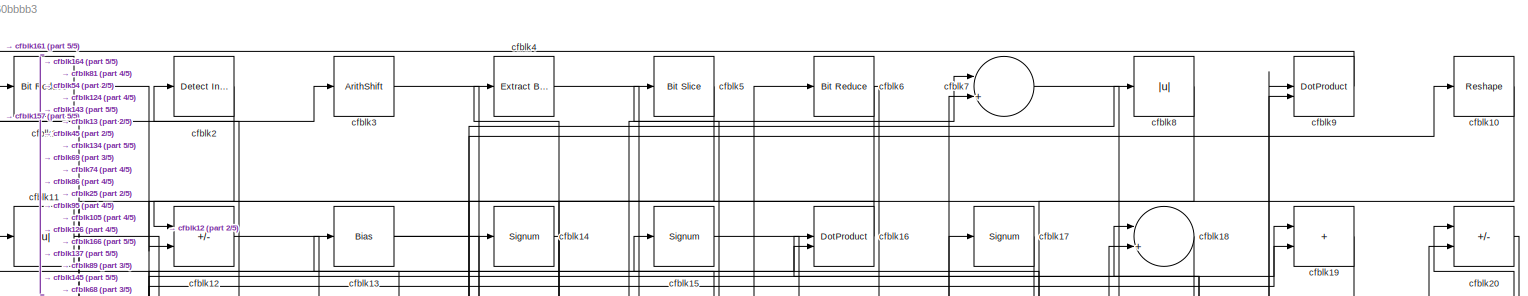
[diagram: root canvas - part 1/5, full width, top band]
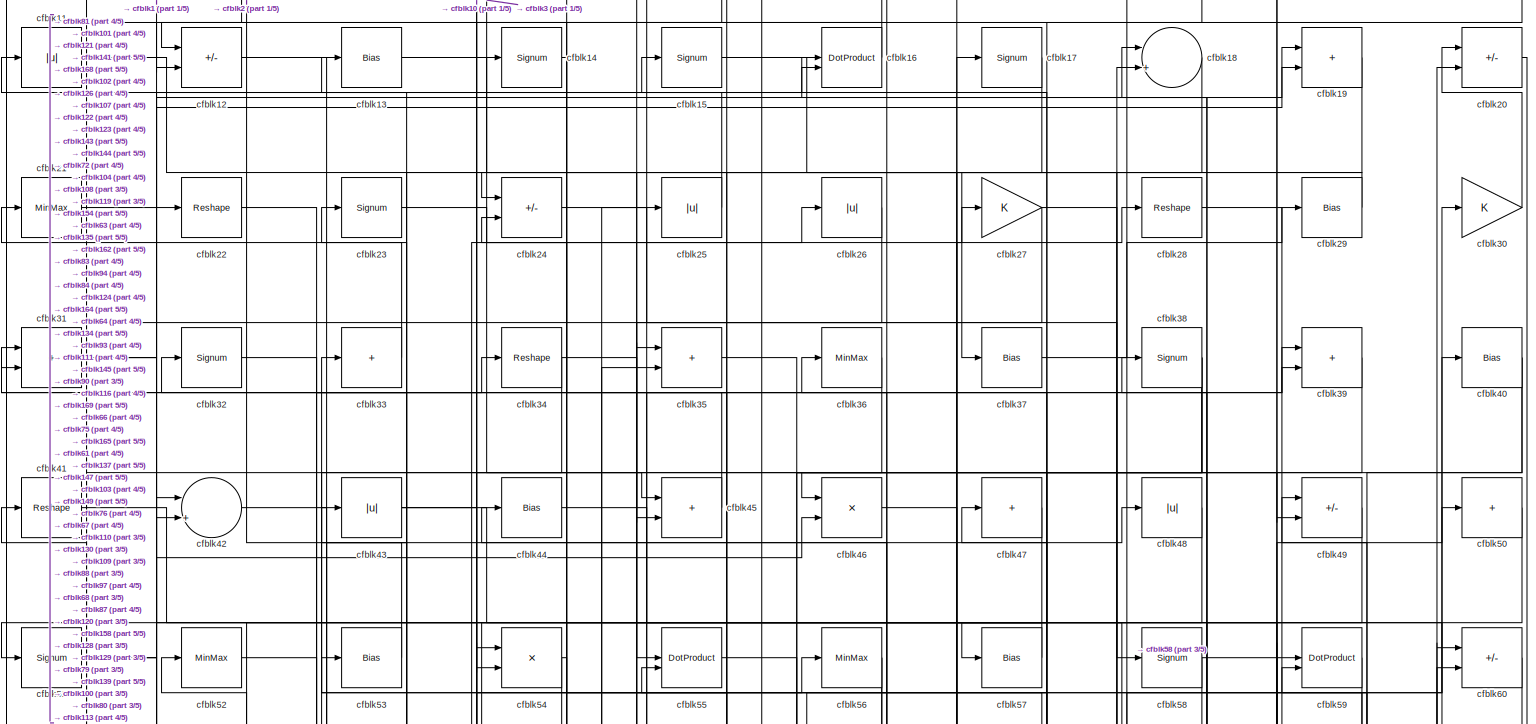
[diagram: root canvas - part 2/5, full width, top band]
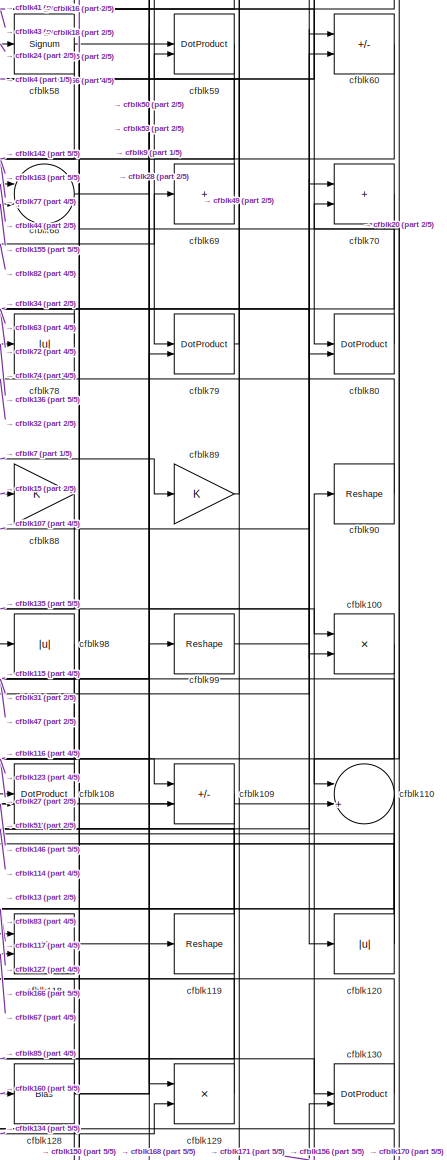
[diagram: root canvas - part 3/5, middle right region]
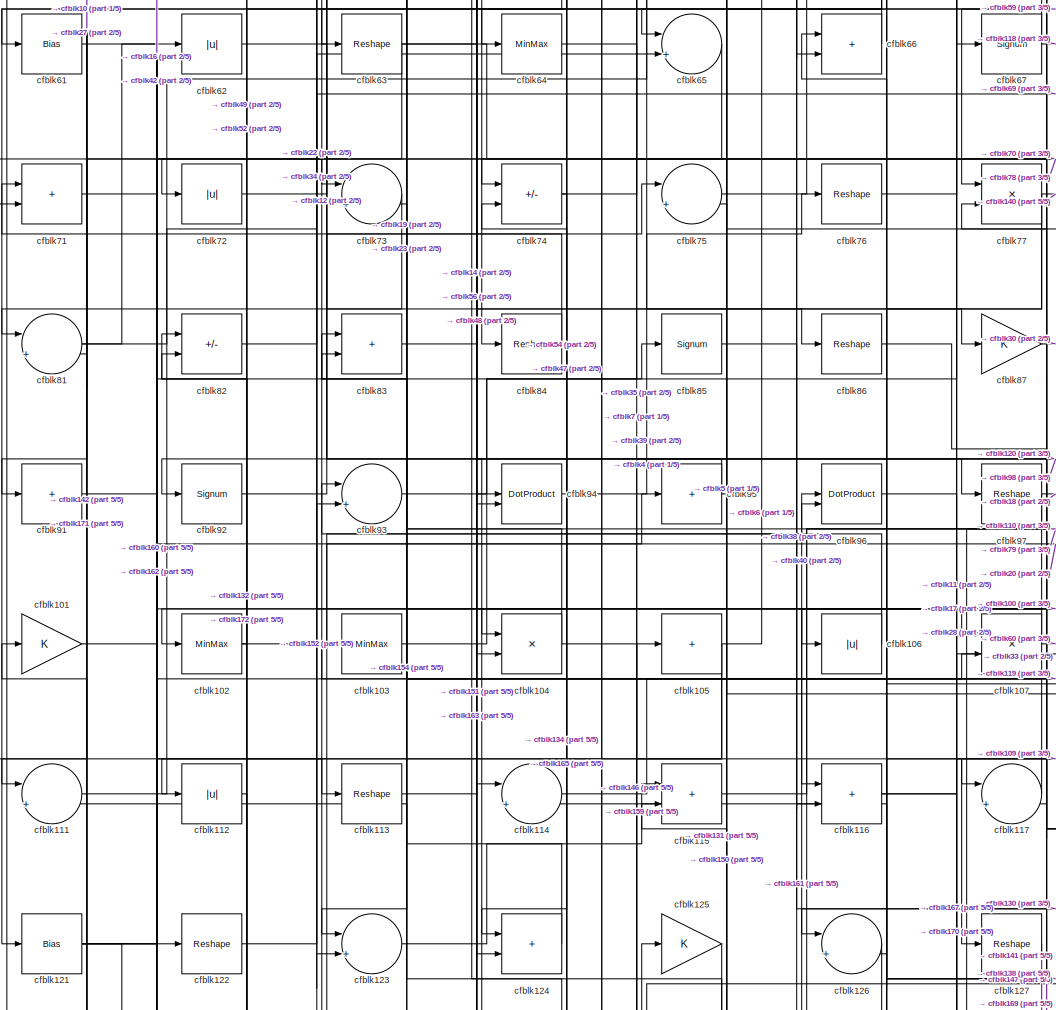
[diagram: root canvas - part 4/5, central region]
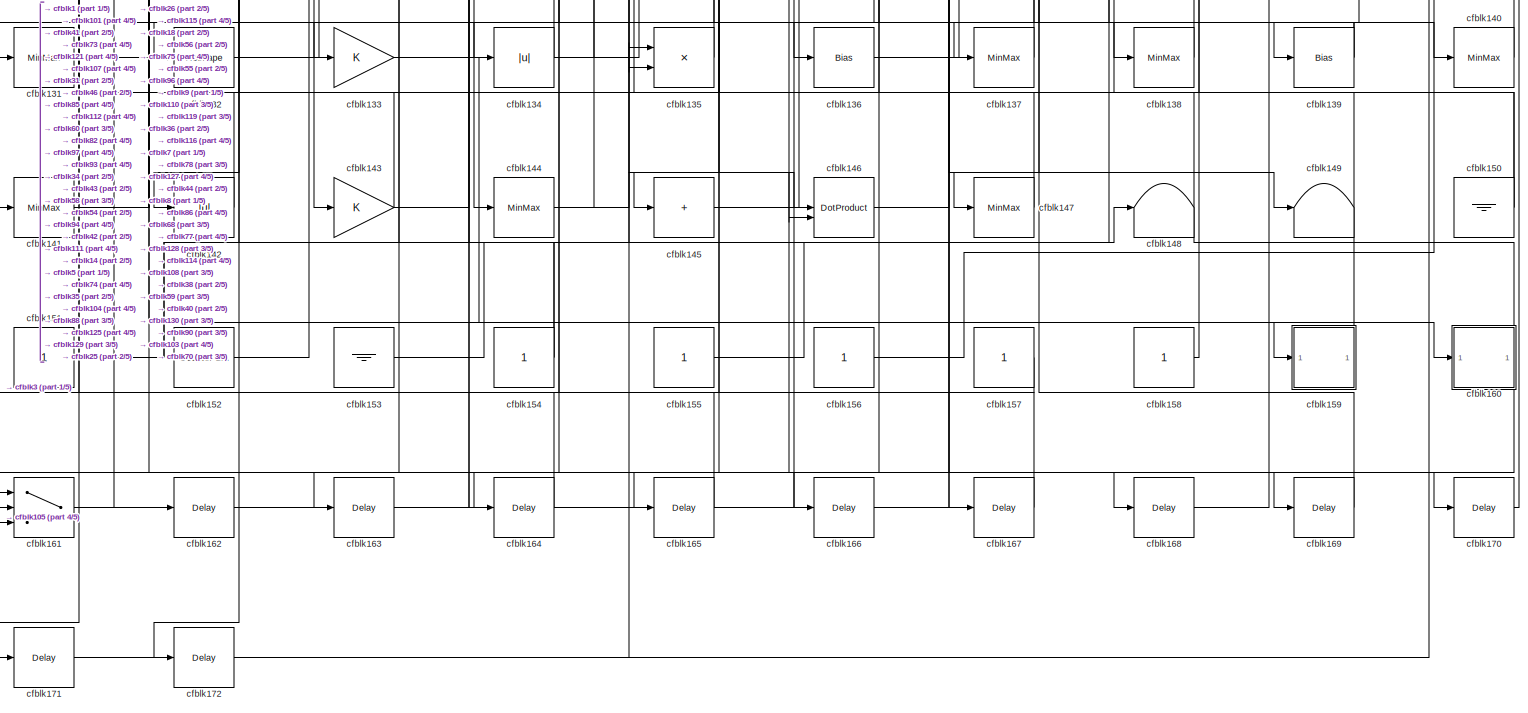
[diagram: root canvas - part 5/5, full width, bottom band]
MODEL slx_e0d2260bbbb3
KIND model
CONFIG AbsTol = auto
CONFIG EnableMultiTasking = off
CONFIG FixedStep = auto
CONFIG MaxStep = auto
CONFIG MinStep = auto
CONFIG RelTol = 1e-3
CONFIG SampleTimeConstraint = Unconstrained
CONFIG SolverName = VariableStepAuto
CONFIG StartTime = 0.0
CONFIG StopTime = 10.0
BLOCK [Reference] cfblk1  REF=hdlsllib/Logic and Bit
Operations/Bit Reduce
  SourceBlock = hdlsllib/Logic and Bit\nOperations/Bit Reduce
  SourceType = Bit Reduce
BLOCK [Reshape] cfblk10
BLOCK [Product] cfblk100
  Inputs = */
  RndMeth = Zero
  SaturateOnIntegerOverflow = on
BLOCK [Gain] cfblk101
BLOCK [MinMax] cfblk102
BLOCK [MinMax] cfblk103
BLOCK [Product] cfblk104
  Inputs = */
  RndMeth = Zero
  SaturateOnIntegerOverflow = on
BLOCK [Sum] cfblk105
  IconShape = rectangular
  Inputs = +
BLOCK [Abs] cfblk106
  SaturateOnIntegerOverflow = off
BLOCK [Product] cfblk107
  Inputs = */
  RndMeth = Zero
  SaturateOnIntegerOverflow = on
BLOCK [DotProduct] cfblk108
  OutDataTypeStr = Inherit: Inherit via internal rule
BLOCK [Sum] cfblk109
  IconShape = rectangular
  Inputs = +-
BLOCK [Abs] cfblk11
  SaturateOnIntegerOverflow = off
BLOCK [Sum] cfblk110
  Inputs = |++
BLOCK [Sum] cfblk111
  Inputs = |++
BLOCK [Abs] cfblk112
  SaturateOnIntegerOverflow = off
BLOCK [Reshape] cfblk113
BLOCK [Sum] cfblk114
  Inputs = |++
BLOCK [Sum] cfblk115
  IconShape = rectangular
BLOCK [Sum] cfblk116
  IconShape = rectangular
BLOCK [Sum] cfblk117
  Inputs = |++
BLOCK [Product] cfblk118
  Inputs = */
  RndMeth = Zero
  SaturateOnIntegerOverflow = on
BLOCK [Reshape] cfblk119
BLOCK [Sum] cfblk12
  IconShape = rectangular
  Inputs = +-
BLOCK [Abs] cfblk120
  SaturateOnIntegerOverflow = off
BLOCK [Bias] cfblk121
  Bias = 0.0
  SaturateOnIntegerOverflow = off
BLOCK [Reshape] cfblk122
BLOCK [Sum] cfblk123
  Inputs = |++
BLOCK [Sum] cfblk124
  IconShape = rectangular
BLOCK [Gain] cfblk125
BLOCK [Sum] cfblk126
  Inputs = |++
BLOCK [Reshape] cfblk127
BLOCK [Bias] cfblk128
  Bias = 0.0
  SaturateOnIntegerOverflow = off
BLOCK [Product] cfblk129
  Inputs = */
  RndMeth = Zero
  SaturateOnIntegerOverflow = on
BLOCK [Bias] cfblk13
  Bias = 0.0
  SaturateOnIntegerOverflow = off
BLOCK [DotProduct] cfblk130
  OutDataTypeStr = Inherit: Inherit via internal rule
BLOCK [MinMax] cfblk131
BLOCK [Reshape] cfblk132
BLOCK [Gain] cfblk133
BLOCK [Abs] cfblk134
  SaturateOnIntegerOverflow = off
BLOCK [Product] cfblk135
  Inputs = */
  RndMeth = Zero
  SaturateOnIntegerOverflow = on
BLOCK [Bias] cfblk136
  Bias = 0.0
  SaturateOnIntegerOverflow = off
BLOCK [MinMax] cfblk137
BLOCK [MinMax] cfblk138
BLOCK [Bias] cfblk139
  Bias = 0.0
  SaturateOnIntegerOverflow = off
BLOCK [Signum] cfblk14
BLOCK [MinMax] cfblk140
BLOCK [MinMax] cfblk141
BLOCK [Abs] cfblk142
  SaturateOnIntegerOverflow = off
BLOCK [Gain] cfblk143
BLOCK [MinMax] cfblk144
BLOCK [Sum] cfblk145
  IconShape = rectangular
  Inputs = +
BLOCK [DotProduct] cfblk146
  OutDataTypeStr = Inherit: Inherit via internal rule
BLOCK [MinMax] cfblk147
BLOCK [Terminator] cfblk148
BLOCK [Terminator] cfblk149
BLOCK [Signum] cfblk15
BLOCK [Ground] cfblk150
BLOCK [Constant] cfblk151
  SampleTime = -1
BLOCK [Reference] cfblk152  REF=hdlsllib/Sources/Counter
Limited
  SourceBlock = hdlsllib/Sources/Counter\nLimited
  SourceType = Counter Limited
BLOCK [Ground] cfblk153
BLOCK [Constant] cfblk154
  SampleTime = -1
BLOCK [Constant] cfblk155
  SampleTime = -1
BLOCK [Constant] cfblk156
  SampleTime = -1
BLOCK [Constant] cfblk157
  SampleTime = -1
BLOCK [Constant] cfblk158
  SampleTime = -1
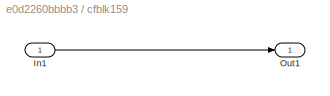
BLOCK [SubSystem] cfblk159
  LibrarySourceBlock = hdlsllib/Ports &\nSubsystems/Subsystem
BLOCK [Inport] cfblk159/In1
BLOCK [Outport] cfblk159/Out1
BLOCK [DotProduct] cfblk16
  OutDataTypeStr = Inherit: Inherit via internal rule
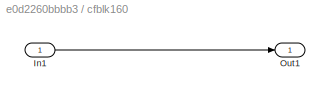
BLOCK [SubSystem] cfblk160
  LibrarySourceBlock = hdlsllib/Ports &\nSubsystems/Subsystem
BLOCK [Inport] cfblk160/In1
BLOCK [Outport] cfblk160/Out1
BLOCK [Switch] cfblk161
  InputSameDT = off
  SaturateOnIntegerOverflow = off
BLOCK [Delay] cfblk162
  InputPortMap = u0
  SampleTime = 1
BLOCK [Delay] cfblk163
  InputPortMap = u0
  SampleTime = 1
BLOCK [Delay] cfblk164
  InputPortMap = u0
  SampleTime = 1
BLOCK [Delay] cfblk165
  InputPortMap = u0
  SampleTime = 1
BLOCK [Delay] cfblk166
  InputPortMap = u0
  SampleTime = 1
BLOCK [Delay] cfblk167
  InputPortMap = u0
  SampleTime = 1
BLOCK [Delay] cfblk168
  InputPortMap = u0
  SampleTime = 1
BLOCK [Delay] cfblk169
  InputPortMap = u0
  SampleTime = 1
BLOCK [Signum] cfblk17
BLOCK [Delay] cfblk170
  InputPortMap = u0
  SampleTime = 1
BLOCK [Delay] cfblk171
  InputPortMap = u0
  SampleTime = 1
BLOCK [Delay] cfblk172
  InputPortMap = u0
  SampleTime = 1
BLOCK [Sum] cfblk18
  Inputs = |++
BLOCK [Sum] cfblk19
  IconShape = rectangular
BLOCK [Reference] cfblk2  REF=simulink/Logic and Bit
Operations/Detect
Increase
  LibrarySourceBlock = hdlsllib/Logic and Bit\nOperations/Detect\nIncrease
  SourceBlock = simulink/Logic and Bit\nOperations/Detect\nIncrease
  SourceType = Detect Increase
BLOCK [Sum] cfblk20
  IconShape = rectangular
  Inputs = +-
BLOCK [MinMax] cfblk21
BLOCK [Reshape] cfblk22
BLOCK [Signum] cfblk23
BLOCK [Sum] cfblk24
  IconShape = rectangular
  Inputs = +-
BLOCK [Abs] cfblk25
  SaturateOnIntegerOverflow = off
BLOCK [Abs] cfblk26
  SaturateOnIntegerOverflow = off
BLOCK [Gain] cfblk27
BLOCK [Reshape] cfblk28
BLOCK [Bias] cfblk29
  Bias = 0.0
  SaturateOnIntegerOverflow = off
BLOCK [ArithShift] cfblk3
  BitShiftNumber = 8
  InputPortMap = u0
BLOCK [Gain] cfblk30
BLOCK [Sum] cfblk31
  IconShape = rectangular
BLOCK [Signum] cfblk32
BLOCK [Sum] cfblk33
  IconShape = rectangular
  Inputs = +
BLOCK [Reshape] cfblk34
BLOCK [Sum] cfblk35
  IconShape = rectangular
BLOCK [MinMax] cfblk36
BLOCK [Bias] cfblk37
  Bias = 0.0
  SaturateOnIntegerOverflow = off
BLOCK [Signum] cfblk38
BLOCK [Sum] cfblk39
  IconShape = rectangular
BLOCK [Reference] cfblk4  REF=simulink/Logic and Bit
Operations/Extract Bits
  LibrarySourceBlock = hdlsllib/Logic and Bit\nOperations/Extract Bits
  SourceBlock = simulink/Logic and Bit\nOperations/Extract Bits
  SourceType = Extract Bits
BLOCK [Bias] cfblk40
  Bias = 0.0
  SaturateOnIntegerOverflow = off
BLOCK [Reshape] cfblk41
BLOCK [Sum] cfblk42
  Inputs = |++
BLOCK [Abs] cfblk43
  SaturateOnIntegerOverflow = off
BLOCK [Bias] cfblk44
  Bias = 0.0
  SaturateOnIntegerOverflow = off
BLOCK [Sum] cfblk45
  IconShape = rectangular
BLOCK [Product] cfblk46
  Inputs = */
  RndMeth = Zero
  SaturateOnIntegerOverflow = on
BLOCK [Sum] cfblk47
  IconShape = rectangular
  Inputs = +
BLOCK [Abs] cfblk48
  SaturateOnIntegerOverflow = off
BLOCK [Sum] cfblk49
  IconShape = rectangular
  Inputs = +-
BLOCK [Reference] cfblk5  REF=hdlsllib/Logic and Bit
Operations/Bit Slice
  SourceBlock = hdlsllib/Logic and Bit\nOperations/Bit Slice
  SourceType = Bit Slice
BLOCK [Sum] cfblk50
  IconShape = rectangular
  Inputs = +
BLOCK [Signum] cfblk51
BLOCK [MinMax] cfblk52
BLOCK [Bias] cfblk53
  Bias = 0.0
  SaturateOnIntegerOverflow = off
BLOCK [Product] cfblk54
  Inputs = */
  RndMeth = Zero
  SaturateOnIntegerOverflow = on
BLOCK [DotProduct] cfblk55
  OutDataTypeStr = Inherit: Inherit via internal rule
BLOCK [MinMax] cfblk56
BLOCK [Bias] cfblk57
  Bias = 0.0
  SaturateOnIntegerOverflow = off
BLOCK [Signum] cfblk58
BLOCK [DotProduct] cfblk59
  OutDataTypeStr = Inherit: Inherit via internal rule
BLOCK [Reference] cfblk6  REF=hdlsllib/Logic and Bit
Operations/Bit Reduce
  SourceBlock = hdlsllib/Logic and Bit\nOperations/Bit Reduce
  SourceType = Bit Reduce
BLOCK [Sum] cfblk60
  IconShape = rectangular
  Inputs = +-
BLOCK [Bias] cfblk61
  Bias = 0.0
  SaturateOnIntegerOverflow = off
BLOCK [Abs] cfblk62
  SaturateOnIntegerOverflow = off
BLOCK [Reshape] cfblk63
BLOCK [MinMax] cfblk64
BLOCK [Sum] cfblk65
  Inputs = |++
BLOCK [Sum] cfblk66
  IconShape = rectangular
BLOCK [Signum] cfblk67
BLOCK [Sum] cfblk68
  Inputs = |++
BLOCK [Sum] cfblk69
  IconShape = rectangular
  Inputs = +
BLOCK [Sum] cfblk7
  Inputs = |++
BLOCK [Sum] cfblk70
  IconShape = rectangular
BLOCK [Sum] cfblk71
  IconShape = rectangular
BLOCK [Abs] cfblk72
  SaturateOnIntegerOverflow = off
BLOCK [Sum] cfblk73
  Inputs = |++
BLOCK [Sum] cfblk74
  IconShape = rectangular
  Inputs = +-
BLOCK [Sum] cfblk75
  Inputs = |++
BLOCK [Reshape] cfblk76
BLOCK [Product] cfblk77
  Inputs = */
  RndMeth = Zero
  SaturateOnIntegerOverflow = on
BLOCK [Abs] cfblk78
  SaturateOnIntegerOverflow = off
BLOCK [DotProduct] cfblk79
  OutDataTypeStr = Inherit: Inherit via internal rule
BLOCK [Abs] cfblk8
  SaturateOnIntegerOverflow = off
BLOCK [DotProduct] cfblk80
  OutDataTypeStr = Inherit: Inherit via internal rule
BLOCK [Sum] cfblk81
  Inputs = |++
BLOCK [Sum] cfblk82
  IconShape = rectangular
  Inputs = +-
BLOCK [Sum] cfblk83
  IconShape = rectangular
BLOCK [Reshape] cfblk84
BLOCK [Signum] cfblk85
BLOCK [Reshape] cfblk86
BLOCK [Gain] cfblk87
BLOCK [Gain] cfblk88
BLOCK [Gain] cfblk89
BLOCK [DotProduct] cfblk9
  OutDataTypeStr = Inherit: Inherit via internal rule
BLOCK [Reshape] cfblk90
BLOCK [Sum] cfblk91
  IconShape = rectangular
  Inputs = +
BLOCK [Signum] cfblk92
BLOCK [Sum] cfblk93
  Inputs = |++
BLOCK [DotProduct] cfblk94
  OutDataTypeStr = Inherit: Inherit via internal rule
BLOCK [Sum] cfblk95
  IconShape = rectangular
  Inputs = +
BLOCK [DotProduct] cfblk96
  OutDataTypeStr = Inherit: Inherit via internal rule
BLOCK [Reshape] cfblk97
BLOCK [Abs] cfblk98
  SaturateOnIntegerOverflow = off
BLOCK [Reshape] cfblk99
LINE cfblk100:1 -> cfblk123:1
LINE cfblk101:1 -> cfblk42:2
NET cfblk102:1 -> cfblk20:2, cfblk82:2
LINE cfblk103:1 -> cfblk17:1
NET cfblk104:1 -> cfblk146:2, cfblk23:1
NET cfblk105:1 -> cfblk112:1, cfblk161:3, cfblk6:1
LINE cfblk106:1 -> cfblk93:1
NET cfblk107:1 -> cfblk106:1, cfblk60:2
LINE cfblk108:1 -> cfblk31:1
LINE cfblk109:1 -> cfblk127:1
LINE cfblk10:1 -> cfblk81:1
NET cfblk110:1 -> cfblk117:2, cfblk166:1, cfblk47:1
LINE cfblk111:1 -> cfblk39:1
LINE cfblk112:1 -> cfblk172:1
LINE cfblk113:1 -> cfblk14:1
LINE cfblk114:1 -> cfblk70:1
LINE cfblk115:1 -> cfblk79:2
NET cfblk116:1 -> cfblk118:1, cfblk170:1
LINE cfblk117:1 -> cfblk83:1
LINE cfblk118:1 -> cfblk119:1
NET cfblk119:1 -> cfblk136:1, cfblk13:1, cfblk83:2
LINE cfblk11:1 -> cfblk67:1
NET cfblk120:1 -> cfblk18:1, cfblk55:2, cfblk66:1
NET cfblk121:1 -> cfblk160:1, cfblk162:1, cfblk16:2, cfblk95:1
LINE cfblk122:1 -> cfblk34:1
LINE cfblk123:1 -> cfblk115:1
LINE cfblk124:1 -> cfblk73:2
LINE cfblk125:1 -> cfblk131:1
LINE cfblk126:1 -> cfblk52:1
LINE cfblk127:1 -> cfblk141:1
NET cfblk128:1 -> cfblk50:1, cfblk53:1, cfblk99:1
LINE cfblk129:1 -> cfblk15:1
LINE cfblk12:1 -> cfblk87:1
LINE cfblk130:1 -> cfblk31:2
LINE cfblk131:1 -> cfblk107:2
LINE cfblk132:1 -> cfblk96:2
LINE cfblk133:1 -> cfblk159:1
NET cfblk134:1 -> cfblk111:2, cfblk129:2, cfblk25:1
LINE cfblk135:1 -> cfblk26:1
LINE cfblk136:1 -> cfblk78:1
LINE cfblk137:1 -> cfblk44:1
LINE cfblk138:1 -> cfblk114:2
NET cfblk139:1 -> cfblk133:1, cfblk138:1
NET cfblk13:1 -> cfblk10:1, cfblk55:1
LINE cfblk140:1 -> cfblk103:1
NET cfblk141:1 -> cfblk42:1, cfblk46:2, cfblk85:1
LINE cfblk142:1 -> cfblk101:1
NET cfblk143:1 -> cfblk41:1, cfblk8:1
NET cfblk144:1 -> cfblk146:1, cfblk35:2
LINE cfblk145:1 -> cfblk9:2
LINE cfblk146:1 -> cfblk110:2
LINE cfblk147:1 -> cfblk36:1
LINE cfblk14:1 -> cfblk164:1
NET cfblk150:1 -> cfblk108:2, cfblk115:2
NET cfblk151:1 -> cfblk135:1, cfblk94:1
LINE cfblk152:1 -> cfblk93:2
LINE cfblk153:1 -> cfblk148:1
NET cfblk154:1 -> cfblk43:1, cfblk82:1
LINE cfblk155:1 -> cfblk68:2
LINE cfblk156:1 -> cfblk90:1
LINE cfblk157:1 -> cfblk3:1
LINE cfblk158:1 -> cfblk38:1
LINE cfblk159/In1:1 -> cfblk159/Out1:1
LINE cfblk159:1 -> cfblk125:1
LINE cfblk15:1 -> cfblk88:1
LINE cfblk160/In1:1 -> cfblk160/Out1:1
NET cfblk160:1 -> cfblk128:1, cfblk161:2
LINE cfblk161:1 -> cfblk96:1
LINE cfblk162:1 -> cfblk54:1
LINE cfblk163:1 -> cfblk114:1
LINE cfblk164:1 -> cfblk1:1
LINE cfblk165:1 -> cfblk74:2
LINE cfblk166:1 -> cfblk7:2
LINE cfblk167:1 -> cfblk75:2
LINE cfblk168:1 -> cfblk59:1
LINE cfblk169:1 -> cfblk77:2
LINE cfblk16:1 -> cfblk12:1
LINE cfblk170:1 -> cfblk70:2
LINE cfblk171:1 -> cfblk130:2
LINE cfblk172:1 -> cfblk105:1
LINE cfblk17:1 -> cfblk37:1
LINE cfblk18:1 -> cfblk145:1
LINE cfblk19:1 -> cfblk63:1
LINE cfblk1:1 -> cfblk54:2
LINE cfblk20:1 -> cfblk110:1
LINE cfblk21:1 -> cfblk22:1
LINE cfblk22:1 -> cfblk107:1
LINE cfblk23:1 -> cfblk27:1
LINE cfblk24:1 -> cfblk58:1
LINE cfblk25:1 -> cfblk2:1
LINE cfblk26:1 -> cfblk45:2
NET cfblk27:1 -> cfblk109:1, cfblk81:2
LINE cfblk28:1 -> cfblk79:1
LINE cfblk29:1 -> cfblk24:1
LINE cfblk2:1 -> cfblk12:2
LINE cfblk30:1 -> cfblk20:1
NET cfblk31:1 -> cfblk168:1, cfblk19:2
LINE cfblk32:1 -> cfblk39:2
LINE cfblk33:1 -> cfblk21:1
NET cfblk34:1 -> cfblk143:1, cfblk80:2
LINE cfblk35:1 -> cfblk49:2
LINE cfblk36:1 -> cfblk46:1
LINE cfblk37:1 -> cfblk29:1
NET cfblk38:1 -> cfblk111:1, cfblk116:2, cfblk66:2
LINE cfblk39:1 -> cfblk57:1
LINE cfblk3:1 -> cfblk45:1
NET cfblk40:1 -> cfblk139:1, cfblk94:2
LINE cfblk41:1 -> cfblk129:1
LINE cfblk42:1 -> cfblk144:1
NET cfblk43:1 -> cfblk100:2, cfblk80:1
LINE cfblk44:1 -> cfblk68:1
LINE cfblk45:1 -> cfblk24:2
LINE cfblk46:1 -> cfblk149:1
LINE cfblk47:1 -> cfblk64:1
LINE cfblk48:1 -> cfblk84:1
LINE cfblk49:1 -> cfblk102:1
LINE cfblk4:1 -> cfblk86:1
LINE cfblk50:1 -> cfblk108:1
NET cfblk51:1 -> cfblk109:2, cfblk19:1
LINE cfblk52:1 -> cfblk123:2
LINE cfblk53:1 -> cfblk11:1
NET cfblk54:1 -> cfblk121:1, cfblk124:1
LINE cfblk55:1 -> cfblk169:1
NET cfblk56:1 -> cfblk165:1, cfblk61:1
LINE cfblk57:1 -> cfblk51:1
NET cfblk58:1 -> cfblk100:1, cfblk163:1
LINE cfblk59:1 -> cfblk77:1
LINE cfblk5:1 -> cfblk134:1
LINE cfblk60:1 -> cfblk142:1
LINE cfblk61:1 -> cfblk113:1
LINE cfblk62:1 -> cfblk97:1
NET cfblk63:1 -> cfblk120:1, cfblk71:2, cfblk98:1
LINE cfblk64:1 -> cfblk117:1
LINE cfblk65:1 -> cfblk91:1
LINE cfblk66:1 -> cfblk65:1
NET cfblk67:1 -> cfblk118:2, cfblk33:1
LINE cfblk68:1 -> cfblk9:1
LINE cfblk69:1 -> cfblk4:1
NET cfblk6:1 -> cfblk124:2, cfblk126:1
LINE cfblk70:1 -> cfblk74:1
LINE cfblk71:1 -> cfblk73:1
LINE cfblk72:1 -> cfblk48:1
LINE cfblk73:1 -> cfblk171:1
NET cfblk74:1 -> cfblk104:1, cfblk7:1
LINE cfblk75:1 -> cfblk40:1
LINE cfblk76:1 -> cfblk28:1
NET cfblk77:1 -> cfblk104:2, cfblk126:2, cfblk140:1
LINE cfblk78:1 -> cfblk72:1
LINE cfblk79:1 -> cfblk49:1
LINE cfblk7:1 -> cfblk89:1
LINE cfblk80:1 -> cfblk16:1
NET cfblk81:1 -> cfblk62:1, cfblk65:2
LINE cfblk82:1 -> cfblk69:1
LINE cfblk83:1 -> cfblk56:1
LINE cfblk84:1 -> cfblk71:1
LINE cfblk85:1 -> cfblk130:1
LINE cfblk86:1 -> cfblk147:1
LINE cfblk87:1 -> cfblk30:1
LINE cfblk88:1 -> cfblk135:2
LINE cfblk89:1 -> cfblk59:2
LINE cfblk8:1 -> cfblk137:1
LINE cfblk90:1 -> cfblk32:1
LINE cfblk91:1 -> cfblk122:1
LINE cfblk92:1 -> cfblk75:1
LINE cfblk93:1 -> cfblk35:1
LINE cfblk94:1 -> cfblk76:1
NET cfblk95:1 -> cfblk5:1, cfblk92:1
LINE cfblk96:1 -> cfblk167:1
NET cfblk97:1 -> cfblk132:1, cfblk18:2
LINE cfblk98:1 -> cfblk116:1
LINE cfblk99:1 -> cfblk60:1
LINE cfblk9:1 -> cfblk161:1
note: NET lines group one-source signal fan-out (src -> all destinations, sorted); 1:1 wires keep LINE
